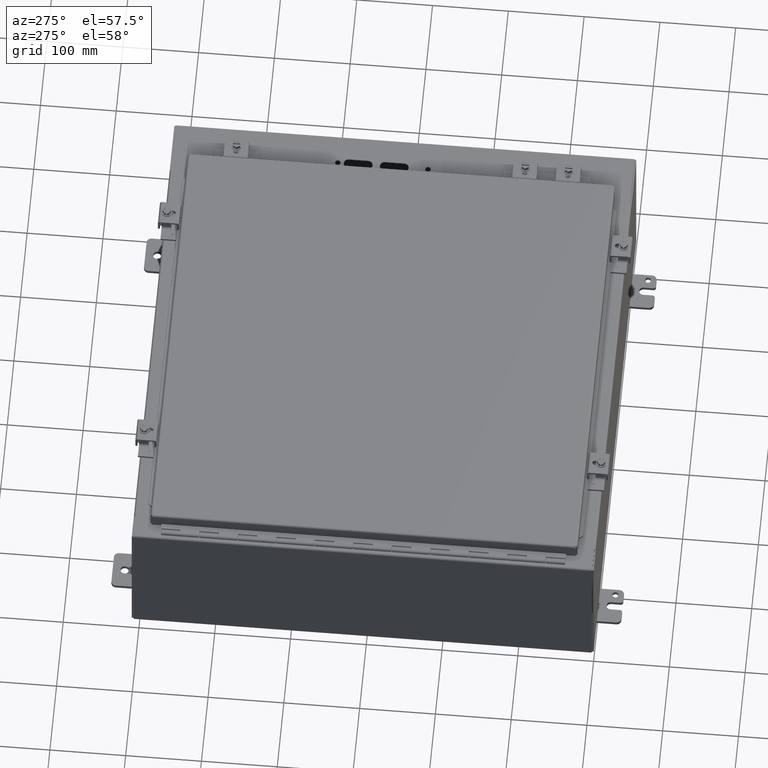
[diagram: clean part render]
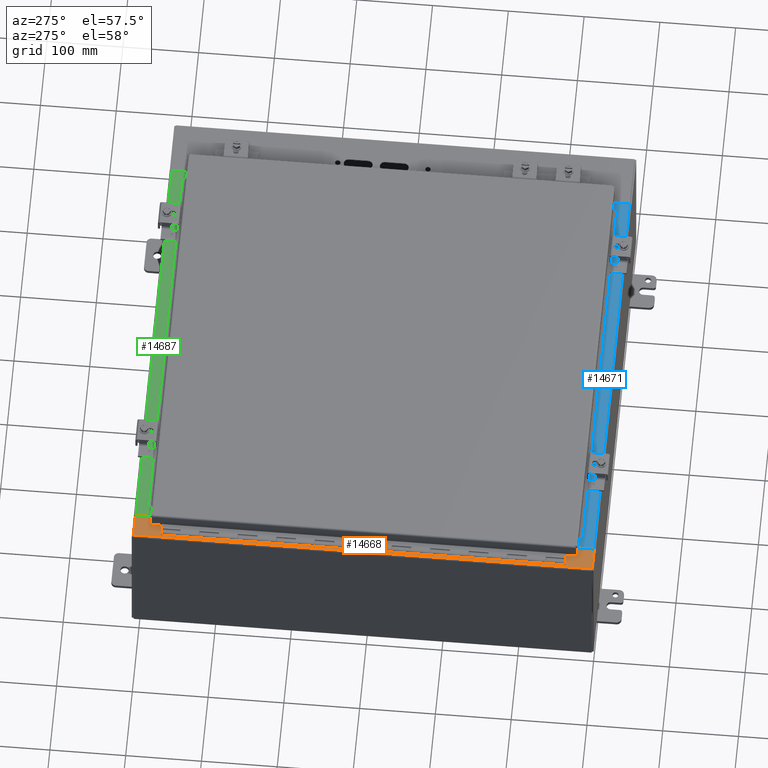
[diagram: same view with three faces highlighted in distinct colors, each labeled with its STEP entity id]
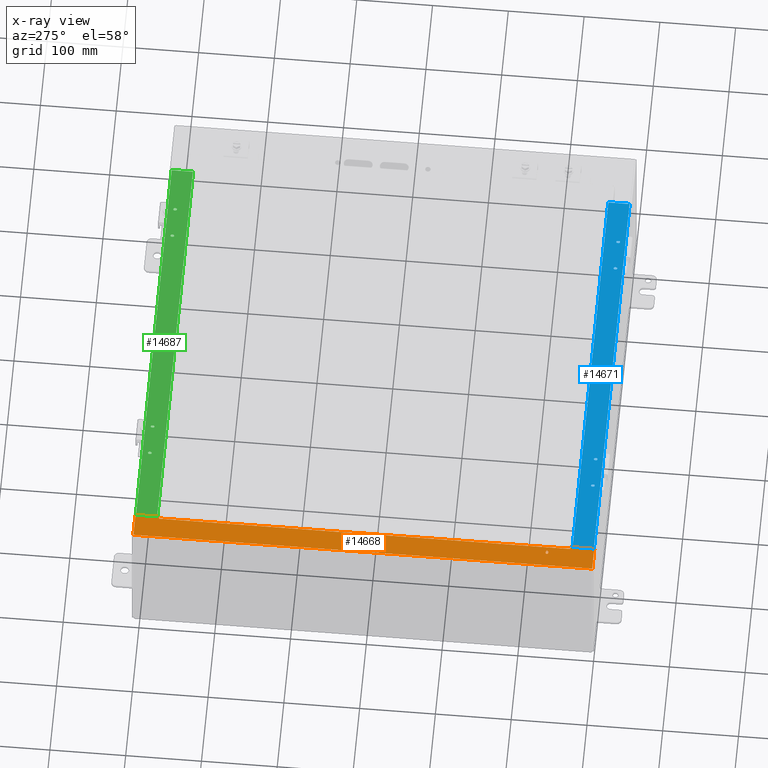
[diagram: x-ray of the same camera — body ghosted, the three highlighted faces saturated]
A machine part, auxiliary view with three faces highlighted in distinct colors.
The next image is the same camera in x-ray (body ghosted, the three faces saturated) — at least one of them is partly hidden behind the body in this view.
Their STEP definitions:

[orange] entity #14668 — the highlighted planar face has unit normal (0, -0, 1).
#404=FACE_BOUND('',#2070,.T.);
#637=PLANE('',#15662);
#1212=FACE_OUTER_BOUND('',#2069,.T.);
#2069=EDGE_LOOP('',(#10407,#10408,#10409,#10410,#10411,#10412,#10413,#10414,
#10415,#10416,#10417,#10418));
#2070=EDGE_LOOP('',(#10419,#10420,#10421,#10422));
#2897=LINE('',#21251,#4286);
#2901=LINE('',#21263,#4290);
#3051=LINE('',#21809,#4440);
#3062=LINE('',#21839,#4451);
#3102=LINE('',#21922,#4491);
#3104=LINE('',#21928,#4493);
#3108=LINE('',#21935,#4497);
#3110=LINE('',#21939,#4499);
#3113=LINE('',#21945,#4502);
#3116=LINE('',#21951,#4505);
#3117=LINE('',#21953,#4506);
#3118=LINE('',#21955,#4507);
#3119=LINE('',#21957,#4508);
#3120=LINE('',#21958,#4509);
#4286=VECTOR('',#17068,0.0629999999999999);
#4290=VECTOR('',#17080,0.0630000000000001);
#4440=VECTOR('',#17626,0.000199999999999981);
#4451=VECTOR('',#17651,0.000199999999999981);
#4491=VECTOR('',#17741,21.374);
#4493=VECTOR('',#17747,0.105450000000007);
#4497=VECTOR('',#17753,0.000199999999999981);
#4499=VECTOR('',#17757,0.00020000000000138);
#4502=VECTOR('',#17762,0.105450000000007);
#4505=VECTOR('',#17767,1.2338);
#4506=VECTOR('',#17768,1.20725000000001);
#4507=VECTOR('',#17769,23.842);
#4508=VECTOR('',#17770,1.20725000000001);
#4509=VECTOR('',#17771,1.2338);
#5618=CIRCLE('',#15425,0.0625);
#5620=CIRCLE('',#15429,0.0625);
#6237=VERTEX_POINT('',#21248);
#6238=VERTEX_POINT('',#21250);
#6240=VERTEX_POINT('',#21256);
#6242=VERTEX_POINT('',#21262);
#6439=VERTEX_POINT('',#21806);
#6440=VERTEX_POINT('',#21808);
#6451=VERTEX_POINT('',#21836);
#6452=VERTEX_POINT('',#21838);
#6471=VERTEX_POINT('',#21926);
#6472=VERTEX_POINT('',#21927);
#6475=VERTEX_POINT('',#21938);
#6477=VERTEX_POINT('',#21944);
#6479=VERTEX_POINT('',#21950);
#6480=VERTEX_POINT('',#21952);
#6481=VERTEX_POINT('',#21954);
#6482=VERTEX_POINT('',#21956);
#7665=EDGE_CURVE('',#6238,#6237,#2897,.T.);
#7668=EDGE_CURVE('',#6240,#6238,#5618,.T.);
#7671=EDGE_CURVE('',#6242,#6240,#2901,.T.);
#7674=EDGE_CURVE('',#6237,#6242,#5620,.T.);
#7917=EDGE_CURVE('',#6440,#6439,#3051,.T.);
#7932=EDGE_CURVE('',#6452,#6451,#3062,.T.);
#7974=EDGE_CURVE('',#6439,#6452,#3102,.T.);
#7976=EDGE_CURVE('',#6471,#6472,#3104,.T.);
#7980=EDGE_CURVE('',#6472,#6440,#3108,.T.);
#7982=EDGE_CURVE('',#6451,#6475,#3110,.T.);
#7985=EDGE_CURVE('',#6475,#6477,#3113,.T.);
#7988=EDGE_CURVE('',#6479,#6477,#3116,.T.);
#7989=EDGE_CURVE('',#6479,#6480,#3117,.T.);
#7990=EDGE_CURVE('',#6481,#6480,#3118,.T.);
#7991=EDGE_CURVE('',#6481,#6482,#3119,.T.);
#7992=EDGE_CURVE('',#6471,#6482,#3120,.T.);
#10407=ORIENTED_EDGE('',*,*,#7976,.T.);
#10408=ORIENTED_EDGE('',*,*,#7980,.T.);
#10409=ORIENTED_EDGE('',*,*,#7917,.T.);
#10410=ORIENTED_EDGE('',*,*,#7974,.T.);
#10411=ORIENTED_EDGE('',*,*,#7932,.T.);
#10412=ORIENTED_EDGE('',*,*,#7982,.T.);
#10413=ORIENTED_EDGE('',*,*,#7985,.T.);
#10414=ORIENTED_EDGE('',*,*,#7988,.F.);
#10415=ORIENTED_EDGE('',*,*,#7989,.T.);
#10416=ORIENTED_EDGE('',*,*,#7990,.F.);
#10417=ORIENTED_EDGE('',*,*,#7991,.T.);
#10418=ORIENTED_EDGE('',*,*,#7992,.F.);
#10419=ORIENTED_EDGE('',*,*,#7665,.T.);
#10420=ORIENTED_EDGE('',*,*,#7674,.T.);
#10421=ORIENTED_EDGE('',*,*,#7671,.T.);
#10422=ORIENTED_EDGE('',*,*,#7668,.T.);
#14668=ADVANCED_FACE('',(#1212,#404),#637,.T.);
#15425=AXIS2_PLACEMENT_3D('',#21257,#17074,#17075);
#15429=AXIS2_PLACEMENT_3D('',#21267,#17086,#17087);
#15662=AXIS2_PLACEMENT_3D('',#21949,#17765,#17766);
#17068=DIRECTION('',(-1.,-3.02470474793707E-15,-1.0646774268193E-30));
#17074=DIRECTION('center_axis',(0.,3.51993835942313E-16,-1.));
#17075=DIRECTION('ref_axis',(3.01360390529615E-15,-1.,0.));
#17080=DIRECTION('',(1.,3.02470474793707E-15,1.0646774268193E-30));
#17086=DIRECTION('center_axis',(0.,3.51993835942313E-16,-1.));
#17087=DIRECTION('ref_axis',(-3.01360390529615E-15,1.,0.));
#17626=DIRECTION('',(1.,0.,0.));
#17651=DIRECTION('',(-1.,0.,0.));
#17741=DIRECTION('',(-3.10838136080822E-16,1.,3.51993835942312E-16));
#17747=DIRECTION('',(-1.,0.,0.));
#17753=DIRECTION('',(0.,1.,3.51993835942312E-16));
#17757=DIRECTION('',(0.,1.,3.51993835942312E-16));
#17762=DIRECTION('',(1.,0.,0.));
#17765=DIRECTION('center_axis',(0.,-3.51993835942313E-16,1.));
#17766=DIRECTION('ref_axis',(1.,0.,0.));
#17767=DIRECTION('',(3.06161305220657E-16,-1.,-3.51993835942312E-16));
#17768=DIRECTION('',(-1.,0.,0.));
#17769=DIRECTION('',(3.51993835942313E-16,1.,3.06161699786838E-16));
#17770=DIRECTION('',(1.,0.,0.));
#17771=DIRECTION('',(3.06161305220657E-16,-1.,-3.51993835942312E-16));
#21248=CARTESIAN_POINT('',(0.868499999999997,2.4375,8.));
#21250=CARTESIAN_POINT('',(0.931499999999997,2.4375,8.));
#21251=CARTESIAN_POINT('',(0.471250000000026,2.4375,8.));
#21256=CARTESIAN_POINT('',(0.931499999999997,2.5625,8.));
#21257=CARTESIAN_POINT('Origin',(0.931499999999997,2.5,8.00000000000001));
#21262=CARTESIAN_POINT('',(0.868499999999997,2.5625,8.));
#21263=CARTESIAN_POINT('',(0.502750000000026,2.5625,8.));
#21267=CARTESIAN_POINT('Origin',(0.868499999999997,2.5,8.00000000000001));
#21806=CARTESIAN_POINT('',(1.20724999999999,1.313,8.));
#21808=CARTESIAN_POINT('',(1.20704999999999,1.313,8.));
#21809=CARTESIAN_POINT('',(0.64052499999999,1.31300000000001,8.));
#21836=CARTESIAN_POINT('',(1.20704999999998,22.687,8.00000000000001));
#21838=CARTESIAN_POINT('',(1.20724999999998,22.687,8.00000000000001));
#21839=CARTESIAN_POINT('',(0.69324999999999,22.687,8.00000000000001));
#21922=CARTESIAN_POINT('',(1.20724999999998,23.304,8.00000000000001));
#21926=CARTESIAN_POINT('',(1.3125,1.3128,8.));
#21927=CARTESIAN_POINT('',(1.20704999999999,1.3128,8.));
#21928=CARTESIAN_POINT('',(0.693249999999994,1.31280000000001,8.));
#21935=CARTESIAN_POINT('',(1.20704999999999,12.6169,8.));
#21938=CARTESIAN_POINT('',(1.20704999999998,22.6872,8.00000000000001));
#21939=CARTESIAN_POINT('',(1.20704999999998,23.304,8.00000000000001));
#21944=CARTESIAN_POINT('',(1.31249999999999,22.6872,8.00000000000001));
#21945=CARTESIAN_POINT('',(0.640524999999987,22.6872,8.00000000000001));
#21949=CARTESIAN_POINT('Origin',(0.0739999999999904,23.921,8.00000000000001));
#21950=CARTESIAN_POINT('',(1.31249999999999,23.921,8.00000000000001));
#21951=CARTESIAN_POINT('',(1.31249999999999,23.921,8.00000000000001));
#21952=CARTESIAN_POINT('',(0.105249999999973,23.921,8.00000000000001));
#21953=CARTESIAN_POINT('',(1.31249999999999,23.921,8.00000000000001));
#21954=CARTESIAN_POINT('',(0.105249999999965,0.0790000000000108,8.00000000000001));
#21955=CARTESIAN_POINT('',(0.105249999999973,23.921,8.00000000000001));
#21956=CARTESIAN_POINT('',(1.3125,0.0790000000000053,8.));
#21957=CARTESIAN_POINT('',(1.3125,0.0789999999999997,8.));
#21958=CARTESIAN_POINT('',(1.31249999999999,23.921,8.00000000000001));

[blue] entity #14671 — the highlighted planar face has unit normal (0, 0, 1).
#405=FACE_BOUND('',#2074,.T.);
#406=FACE_BOUND('',#2075,.T.);
#407=FACE_BOUND('',#2076,.T.);
#408=FACE_BOUND('',#2077,.T.);
#640=PLANE('',#15665);
#1215=FACE_OUTER_BOUND('',#2073,.T.);
#2073=EDGE_LOOP('',(#10439,#10440,#10441,#10442));
#2074=EDGE_LOOP('',(#10443,#10444,#10445,#10446));
#2075=EDGE_LOOP('',(#10447,#10448,#10449,#10450));
#2076=EDGE_LOOP('',(#10451,#10452,#10453,#10454));
#2077=EDGE_LOOP('',(#10455,#10456,#10457,#10458));
#2866=LINE('',#21157,#4255);
#2870=LINE('',#21167,#4259);
#2874=LINE('',#21182,#4263);
#2878=LINE('',#21192,#4267);
#2882=LINE('',#21207,#4271);
#2886=LINE('',#21217,#4275);
#2890=LINE('',#21232,#4279);
#2894=LINE('',#21242,#4283);
#2927=LINE('',#21498,#4316);
#2939=LINE('',#21531,#4328);
#3068=LINE('',#21854,#4457);
#3127=LINE('',#21972,#4516);
#4255=VECTOR('',#16971,0.0629999999999999);
#4259=VECTOR('',#16983,0.0629999999999999);
#4263=VECTOR('',#16997,0.0629999999999999);
#4267=VECTOR('',#17009,0.0629999999999999);
#4271=VECTOR('',#17023,0.0629999999999999);
#4275=VECTOR('',#17035,0.0629999999999999);
#4279=VECTOR('',#17049,0.0629999999999999);
#4283=VECTOR('',#17061,0.0629999999999999);
#4316=VECTOR('',#17360,1.102);
#4328=VECTOR('',#17386,1.10199999999983);
#4457=VECTOR('',#17671,21.253);
#4516=VECTOR('',#17784,21.253);
#5602=CIRCLE('',#15388,0.0625);
#5604=CIRCLE('',#15392,0.0625);
#5606=CIRCLE('',#15397,0.0625);
#5608=CIRCLE('',#15401,0.0625);
#5610=CIRCLE('',#15406,0.0625);
#5612=CIRCLE('',#15410,0.0625);
#5614=CIRCLE('',#15415,0.0625);
#5616=CIRCLE('',#15419,0.0625);
#6205=VERTEX_POINT('',#21148);
#6206=VERTEX_POINT('',#21150);
#6208=VERTEX_POINT('',#21156);
#6210=VERTEX_POINT('',#21162);
#6213=VERTEX_POINT('',#21173);
#6214=VERTEX_POINT('',#21175);
#6216=VERTEX_POINT('',#21181);
#6218=VERTEX_POINT('',#21187);
#6221=VERTEX_POINT('',#21198);
#6222=VERTEX_POINT('',#21200);
#6224=VERTEX_POINT('',#21206);
#6226=VERTEX_POINT('',#21212);
#6229=VERTEX_POINT('',#21223);
#6230=VERTEX_POINT('',#21225);
#6232=VERTEX_POINT('',#21231);
#6234=VERTEX_POINT('',#21237);
#6323=VERTEX_POINT('',#21495);
#6324=VERTEX_POINT('',#21497);
#6337=VERTEX_POINT('',#21528);
#6338=VERTEX_POINT('',#21530);
#7617=EDGE_CURVE('',#6206,#6205,#5602,.T.);
#7620=EDGE_CURVE('',#6208,#6206,#2866,.T.);
#7623=EDGE_CURVE('',#6210,#6208,#5604,.T.);
#7626=EDGE_CURVE('',#6205,#6210,#2870,.T.);
#7629=EDGE_CURVE('',#6214,#6213,#5606,.T.);
#7632=EDGE_CURVE('',#6216,#6214,#2874,.T.);
#7635=EDGE_CURVE('',#6218,#6216,#5608,.T.);
#7638=EDGE_CURVE('',#6213,#6218,#2878,.T.);
#7641=EDGE_CURVE('',#6222,#6221,#5610,.T.);
#7644=EDGE_CURVE('',#6224,#6222,#2882,.T.);
#7647=EDGE_CURVE('',#6226,#6224,#5612,.T.);
#7650=EDGE_CURVE('',#6221,#6226,#2886,.T.);
#7653=EDGE_CURVE('',#6230,#6229,#5614,.T.);
#7656=EDGE_CURVE('',#6232,#6230,#2890,.T.);
#7659=EDGE_CURVE('',#6234,#6232,#5616,.T.);
#7662=EDGE_CURVE('',#6229,#6234,#2894,.T.);
#7763=EDGE_CURVE('',#6324,#6323,#2927,.T.);
#7779=EDGE_CURVE('',#6338,#6337,#2939,.T.);
#7940=EDGE_CURVE('',#6337,#6324,#3068,.T.);
#7999=EDGE_CURVE('',#6338,#6323,#3127,.T.);
#10439=ORIENTED_EDGE('',*,*,#7940,.T.);
#10440=ORIENTED_EDGE('',*,*,#7763,.T.);
#10441=ORIENTED_EDGE('',*,*,#7999,.F.);
#10442=ORIENTED_EDGE('',*,*,#7779,.T.);
#10443=ORIENTED_EDGE('',*,*,#7617,.T.);
#10444=ORIENTED_EDGE('',*,*,#7626,.T.);
#10445=ORIENTED_EDGE('',*,*,#7623,.T.);
#10446=ORIENTED_EDGE('',*,*,#7620,.T.);
#10447=ORIENTED_EDGE('',*,*,#7629,.T.);
#10448=ORIENTED_EDGE('',*,*,#7638,.T.);
#10449=ORIENTED_EDGE('',*,*,#7635,.T.);
#10450=ORIENTED_EDGE('',*,*,#7632,.T.);
#10451=ORIENTED_EDGE('',*,*,#7641,.T.);
#10452=ORIENTED_EDGE('',*,*,#7650,.T.);
#10453=ORIENTED_EDGE('',*,*,#7647,.T.);
#10454=ORIENTED_EDGE('',*,*,#7644,.T.);
#10455=ORIENTED_EDGE('',*,*,#7653,.T.);
#10456=ORIENTED_EDGE('',*,*,#7662,.T.);
#10457=ORIENTED_EDGE('',*,*,#7659,.T.);
#10458=ORIENTED_EDGE('',*,*,#7656,.T.);
#14671=ADVANCED_FACE('',(#1215,#405,#406,#407,#408),#640,.T.);
#15388=AXIS2_PLACEMENT_3D('',#21151,#16965,#16966);
#15392=AXIS2_PLACEMENT_3D('',#21163,#16977,#16978);
#15397=AXIS2_PLACEMENT_3D('',#21176,#16991,#16992);
#15401=AXIS2_PLACEMENT_3D('',#21188,#17003,#17004);
#15406=AXIS2_PLACEMENT_3D('',#21201,#17017,#17018);
#15410=AXIS2_PLACEMENT_3D('',#21213,#17029,#17030);
#15415=AXIS2_PLACEMENT_3D('',#21226,#17043,#17044);
#15419=AXIS2_PLACEMENT_3D('',#21238,#17055,#17056);
#15665=AXIS2_PLACEMENT_3D('',#21971,#17782,#17783);
#16965=DIRECTION('center_axis',(0.,0.,-1.));
#16966=DIRECTION('ref_axis',(1.,7.99213758992375E-15,0.));
#16971=DIRECTION('',(-7.99213758992374E-15,1.,0.));
#16977=DIRECTION('center_axis',(0.,0.,-1.));
#16978=DIRECTION('ref_axis',(-1.,-7.99213758992375E-15,0.));
#16983=DIRECTION('',(7.99213758992374E-15,-1.,0.));
#16991=DIRECTION('center_axis',(0.,0.,-1.));
#16992=DIRECTION('ref_axis',(1.,7.99213758992375E-15,0.));
#16997=DIRECTION('',(-7.99213758992374E-15,1.,0.));
#17003=DIRECTION('center_axis',(0.,0.,-1.));
#17004=DIRECTION('ref_axis',(-1.,-7.99213758992375E-15,0.));
#17009=DIRECTION('',(7.99213758992374E-15,-1.,0.));
#17017=DIRECTION('center_axis',(0.,0.,-1.));
#17018=DIRECTION('ref_axis',(1.,7.99213758992375E-15,0.));
#17023=DIRECTION('',(-7.99213758992374E-15,1.,0.));
#17029=DIRECTION('center_axis',(0.,0.,-1.));
#17030=DIRECTION('ref_axis',(-1.,-7.99213758992375E-15,0.));
#17035=DIRECTION('',(7.99213758992374E-15,-1.,0.));
#17043=DIRECTION('center_axis',(0.,0.,-1.));
#17044=DIRECTION('ref_axis',(1.,7.99213758992375E-15,0.));
#17049=DIRECTION('',(-7.99213758992374E-15,1.,0.));
#17055=DIRECTION('center_axis',(0.,0.,-1.));
#17056=DIRECTION('ref_axis',(-1.,-7.99213758992375E-15,0.));
#17061=DIRECTION('',(7.99213758992374E-15,-1.,0.));
#17360=DIRECTION('',(0.,-1.,0.));
#17386=DIRECTION('',(0.,1.,0.));
#17671=DIRECTION('',(-1.,0.,0.));
#17782=DIRECTION('center_axis',(0.,0.,1.));
#17783=DIRECTION('ref_axis',(1.,0.,0.));
#17784=DIRECTION('',(-1.,-8.21328223313601E-15,-8.21328223313579E-15));
#21148=CARTESIAN_POINT('',(18.6300000000001,0.52050000000011,8.));
#21150=CARTESIAN_POINT('',(18.5050000000001,0.520500000000109,8.));
#21151=CARTESIAN_POINT('Origin',(18.5675000000001,0.52050000000011,8.));
#21156=CARTESIAN_POINT('',(18.5050000000001,0.457500000000109,8.));
#21157=CARTESIAN_POINT('',(18.5050000000001,0.297250000000122,8.));
#21162=CARTESIAN_POINT('',(18.6300000000001,0.45750000000011,8.));
#21163=CARTESIAN_POINT('Origin',(18.5675000000001,0.45750000000011,8.));
#21167=CARTESIAN_POINT('',(18.6300000000001,0.265750000000123,8.));
#21173=CARTESIAN_POINT('',(20.2550000000001,0.520500000000124,8.));
#21175=CARTESIAN_POINT('',(20.1300000000001,0.520500000000123,8.));
#21176=CARTESIAN_POINT('Origin',(20.1925000000001,0.520500000000124,8.));
#21181=CARTESIAN_POINT('',(20.1300000000001,0.457500000000123,8.));
#21182=CARTESIAN_POINT('',(20.1300000000001,0.297250000000136,8.));
#21187=CARTESIAN_POINT('',(20.2550000000001,0.457500000000124,8.));
#21188=CARTESIAN_POINT('Origin',(20.1925000000001,0.457500000000124,8.));
#21192=CARTESIAN_POINT('',(20.2550000000001,0.265750000000137,8.));
#21198=CARTESIAN_POINT('',(6.875,0.520500000000014,8.));
#21200=CARTESIAN_POINT('',(6.75,0.520500000000013,8.));
#21201=CARTESIAN_POINT('Origin',(6.8125,0.520500000000013,8.));
#21206=CARTESIAN_POINT('',(6.75,0.457500000000013,8.));
#21207=CARTESIAN_POINT('',(6.75,0.297250000000027,8.));
#21212=CARTESIAN_POINT('',(6.875,0.457500000000014,8.));
#21213=CARTESIAN_POINT('Origin',(6.8125,0.457500000000013,8.));
#21217=CARTESIAN_POINT('',(6.875,0.265750000000028,8.));
#21223=CARTESIAN_POINT('',(5.25,0.520500000000001,8.));
#21225=CARTESIAN_POINT('',(5.125,0.5205,8.));
#21226=CARTESIAN_POINT('Origin',(5.1875,0.5205,8.));
#21231=CARTESIAN_POINT('',(5.125,0.4575,8.));
#21232=CARTESIAN_POINT('',(5.125,0.297250000000014,8.));
#21237=CARTESIAN_POINT('',(5.25,0.457500000000001,8.));
#21238=CARTESIAN_POINT('Origin',(5.1875,0.4575,8.));
#21242=CARTESIAN_POINT('',(5.25,0.265750000000015,8.));
#21495=CARTESIAN_POINT('',(1.3135,0.105249999999998,8.));
#21497=CARTESIAN_POINT('',(1.3135,1.20725,8.));
#21498=CARTESIAN_POINT('',(1.3135,1.3125,8.));
#21528=CARTESIAN_POINT('',(22.5665,1.20725,8.));
#21530=CARTESIAN_POINT('',(22.5665,0.105250000000172,8.));
#21531=CARTESIAN_POINT('',(22.5665,1.3125,8.));
#21854=CARTESIAN_POINT('',(1.3135,1.20725,8.));
#21971=CARTESIAN_POINT('Origin',(1.3135,0.0739999999999978,8.));
#21972=CARTESIAN_POINT('',(1.3135,0.10525,8.));

[green] entity #14687 — the highlighted planar face has unit normal (-0, -0, 1).
#409=FACE_BOUND('',#2094,.T.);
#410=FACE_BOUND('',#2095,.T.);
#411=FACE_BOUND('',#2096,.T.);
#412=FACE_BOUND('',#2097,.T.);
#652=PLANE('',#15689);
#1231=FACE_OUTER_BOUND('',#2093,.T.);
#2093=EDGE_LOOP('',(#10539,#10540,#10541,#10542));
#2094=EDGE_LOOP('',(#10543,#10544,#10545,#10546));
#2095=EDGE_LOOP('',(#10547,#10548,#10549,#10550));
#2096=EDGE_LOOP('',(#10551,#10552,#10553,#10554));
#2097=EDGE_LOOP('',(#10555,#10556,#10557,#10558));
#2834=LINE('',#21057,#4223);
#2838=LINE('',#21067,#4227);
#2842=LINE('',#21082,#4231);
#2846=LINE('',#21092,#4235);
#2850=LINE('',#21107,#4239);
#2854=LINE('',#21117,#4243);
#2858=LINE('',#21132,#4247);
#2862=LINE('',#21142,#4251);
#3003=LINE('',#21688,#4392);
#3017=LINE('',#21733,#4406);
#3098=LINE('',#21914,#4487);
#3161=LINE('',#22056,#4550);
#4223=VECTOR('',#16867,0.0630000000000012);
#4227=VECTOR('',#16879,0.0630000000000012);
#4231=VECTOR('',#16893,0.0630000000000012);
#4235=VECTOR('',#16905,0.0630000000000012);
#4239=VECTOR('',#16919,0.0630000000000012);
#4243=VECTOR('',#16931,0.0630000000000012);
#4247=VECTOR('',#16945,0.0630000000000012);
#4251=VECTOR('',#16957,0.0630000000000012);
#4392=VECTOR('',#17524,1.10200000000002);
#4406=VECTOR('',#17556,1.10200000000001);
#4487=VECTOR('',#17729,21.253);
#4550=VECTOR('',#17866,21.253);
#5586=CIRCLE('',#15352,0.0625);
#5588=CIRCLE('',#15356,0.0625);
#5590=CIRCLE('',#15361,0.0625);
#5592=CIRCLE('',#15365,0.0625);
#5594=CIRCLE('',#15370,0.0625);
#5596=CIRCLE('',#15374,0.0625);
#5598=CIRCLE('',#15379,0.0625);
#5600=CIRCLE('',#15383,0.0625);
#6173=VERTEX_POINT('',#21048);
#6174=VERTEX_POINT('',#21050);
#6176=VERTEX_POINT('',#21056);
#6178=VERTEX_POINT('',#21062);
#6181=VERTEX_POINT('',#21073);
#6182=VERTEX_POINT('',#21075);
#6184=VERTEX_POINT('',#21081);
#6186=VERTEX_POINT('',#21087);
#6189=VERTEX_POINT('',#21098);
#6190=VERTEX_POINT('',#21100);
#6192=VERTEX_POINT('',#21106);
#6194=VERTEX_POINT('',#21112);
#6197=VERTEX_POINT('',#21123);
#6198=VERTEX_POINT('',#21125);
#6200=VERTEX_POINT('',#21131);
#6202=VERTEX_POINT('',#21137);
#6393=VERTEX_POINT('',#21685);
#6394=VERTEX_POINT('',#21687);
#6415=VERTEX_POINT('',#21730);
#6416=VERTEX_POINT('',#21732);
#7569=EDGE_CURVE('',#6174,#6173,#5586,.T.);
#7572=EDGE_CURVE('',#6176,#6174,#2834,.T.);
#7575=EDGE_CURVE('',#6178,#6176,#5588,.T.);
#7578=EDGE_CURVE('',#6173,#6178,#2838,.T.);
#7581=EDGE_CURVE('',#6182,#6181,#5590,.T.);
#7584=EDGE_CURVE('',#6184,#6182,#2842,.T.);
#7587=EDGE_CURVE('',#6186,#6184,#5592,.T.);
#7590=EDGE_CURVE('',#6181,#6186,#2846,.T.);
#7593=EDGE_CURVE('',#6190,#6189,#5594,.T.);
#7596=EDGE_CURVE('',#6192,#6190,#2850,.T.);
#7599=EDGE_CURVE('',#6194,#6192,#5596,.T.);
#7602=EDGE_CURVE('',#6189,#6194,#2854,.T.);
#7605=EDGE_CURVE('',#6198,#6197,#5598,.T.);
#7608=EDGE_CURVE('',#6200,#6198,#2858,.T.);
#7611=EDGE_CURVE('',#6202,#6200,#5600,.T.);
#7614=EDGE_CURVE('',#6197,#6202,#2862,.T.);
#7857=EDGE_CURVE('',#6394,#6393,#3003,.T.);
#7879=EDGE_CURVE('',#6416,#6415,#3017,.T.);
#7970=EDGE_CURVE('',#6393,#6416,#3098,.T.);
#8041=EDGE_CURVE('',#6394,#6415,#3161,.T.);
#10539=ORIENTED_EDGE('',*,*,#7970,.T.);
#10540=ORIENTED_EDGE('',*,*,#7879,.T.);
#10541=ORIENTED_EDGE('',*,*,#8041,.F.);
#10542=ORIENTED_EDGE('',*,*,#7857,.T.);
#10543=ORIENTED_EDGE('',*,*,#7569,.T.);
#10544=ORIENTED_EDGE('',*,*,#7578,.T.);
#10545=ORIENTED_EDGE('',*,*,#7575,.T.);
#10546=ORIENTED_EDGE('',*,*,#7572,.T.);
#10547=ORIENTED_EDGE('',*,*,#7581,.T.);
#10548=ORIENTED_EDGE('',*,*,#7590,.T.);
#10549=ORIENTED_EDGE('',*,*,#7587,.T.);
#10550=ORIENTED_EDGE('',*,*,#7584,.T.);
#10551=ORIENTED_EDGE('',*,*,#7593,.T.);
#10552=ORIENTED_EDGE('',*,*,#7602,.T.);
#10553=ORIENTED_EDGE('',*,*,#7599,.T.);
#10554=ORIENTED_EDGE('',*,*,#7596,.T.);
#10555=ORIENTED_EDGE('',*,*,#7605,.T.);
#10556=ORIENTED_EDGE('',*,*,#7614,.T.);
#10557=ORIENTED_EDGE('',*,*,#7611,.T.);
#10558=ORIENTED_EDGE('',*,*,#7608,.T.);
#14687=ADVANCED_FACE('',(#1231,#409,#410,#411,#412),#652,.T.);
#15352=AXIS2_PLACEMENT_3D('',#21051,#16861,#16862);
#15356=AXIS2_PLACEMENT_3D('',#21063,#16873,#16874);
#15361=AXIS2_PLACEMENT_3D('',#21076,#16887,#16888);
#15365=AXIS2_PLACEMENT_3D('',#21088,#16899,#16900);
#15370=AXIS2_PLACEMENT_3D('',#21101,#16913,#16914);
#15374=AXIS2_PLACEMENT_3D('',#21113,#16925,#16926);
#15379=AXIS2_PLACEMENT_3D('',#21126,#16939,#16940);
#15383=AXIS2_PLACEMENT_3D('',#21138,#16951,#16952);
#15689=AXIS2_PLACEMENT_3D('',#22055,#17864,#17865);
#16861=DIRECTION('center_axis',(2.63248703290063E-16,5.08209751909766E-14,
-1.));
#16862=DIRECTION('ref_axis',(1.,7.99213758992375E-15,0.));
#16867=DIRECTION('',(-7.99213758992374E-15,1.,5.08209751909766E-14));
#16873=DIRECTION('center_axis',(2.63248703290063E-16,5.08209751909766E-14,
-1.));
#16874=DIRECTION('ref_axis',(-1.,-7.99213758992375E-15,0.));
#16879=DIRECTION('',(7.99213758992374E-15,-1.,-5.08209751909766E-14));
#16887=DIRECTION('center_axis',(2.63248703290063E-16,5.08209751909766E-14,
-1.));
#16888=DIRECTION('ref_axis',(1.,7.99213758992375E-15,0.));
#16893=DIRECTION('',(-7.99213758992374E-15,1.,5.08209751909766E-14));
#16899=DIRECTION('center_axis',(2.63248703290063E-16,5.08209751909766E-14,
-1.));
#16900=DIRECTION('ref_axis',(-1.,-7.99213758992375E-15,0.));
#16905=DIRECTION('',(7.99213758992374E-15,-1.,-5.08209751909766E-14));
#16913=DIRECTION('center_axis',(2.63248703290063E-16,5.08209751909766E-14,
-1.));
#16914=DIRECTION('ref_axis',(1.,7.99213758992375E-15,0.));
#16919=DIRECTION('',(-7.99213758992374E-15,1.,5.08209751909766E-14));
#16925=DIRECTION('center_axis',(2.63248703290063E-16,5.08209751909766E-14,
-1.));
#16926=DIRECTION('ref_axis',(-1.,-7.99213758992375E-15,0.));
#16931=DIRECTION('',(7.99213758992374E-15,-1.,-5.08209751909766E-14));
#16939=DIRECTION('center_axis',(2.63248703290063E-16,5.08209751909766E-14,
-1.));
#16940=DIRECTION('ref_axis',(1.,7.99213758992375E-15,0.));
#16945=DIRECTION('',(-7.99213758992374E-15,1.,5.08209751909766E-14));
#16951=DIRECTION('center_axis',(2.63248703290063E-16,5.08209751909766E-14,
-1.));
#16952=DIRECTION('ref_axis',(-1.,-7.99213758992375E-15,0.));
#16957=DIRECTION('',(7.99213758992374E-15,-1.,-5.08209751909766E-14));
#17524=DIRECTION('',(0.,-1.,-5.08209751909766E-14));
#17556=DIRECTION('',(0.,1.,5.08209751909766E-14));
#17729=DIRECTION('',(1.,5.26497406580192E-16,2.63248703290089E-16));
#17864=DIRECTION('center_axis',(-2.63248703290063E-16,-5.08209751909766E-14,
1.));
#17865=DIRECTION('ref_axis',(1.,0.,0.));
#17866=DIRECTION('',(1.,-1.97436527467558E-16,5.26497406580197E-16));
#21048=CARTESIAN_POINT('',(20.2550000000001,23.5424999999999,8.));
#21050=CARTESIAN_POINT('',(20.1300000000001,23.5424999999999,8.));
#21051=CARTESIAN_POINT('Origin',(20.1925000000001,23.5424999999999,8.00000000000001));
#21056=CARTESIAN_POINT('',(20.1300000000001,23.4794999999999,8.));
#21057=CARTESIAN_POINT('',(20.1300000000001,23.7342499999997,8.));
#21062=CARTESIAN_POINT('',(20.2550000000001,23.4794999999999,8.));
#21063=CARTESIAN_POINT('Origin',(20.1925000000001,23.4794999999999,8.00000000000001));
#21067=CARTESIAN_POINT('',(20.2550000000001,23.7027499999997,8.));
#21073=CARTESIAN_POINT('',(18.6300000000001,23.5424999999999,8.));
#21075=CARTESIAN_POINT('',(18.5050000000001,23.5424999999999,8.));
#21076=CARTESIAN_POINT('Origin',(18.5675000000001,23.5424999999999,8.00000000000001));
#21081=CARTESIAN_POINT('',(18.5050000000001,23.4794999999999,8.));
#21082=CARTESIAN_POINT('',(18.5050000000001,23.7342499999997,8.));
#21087=CARTESIAN_POINT('',(18.6300000000001,23.4794999999999,8.));
#21088=CARTESIAN_POINT('Origin',(18.5675000000001,23.4794999999999,8.00000000000001));
#21092=CARTESIAN_POINT('',(18.6300000000001,23.7027499999997,8.));
#21098=CARTESIAN_POINT('',(6.875,23.5425,8.));
#21100=CARTESIAN_POINT('',(6.75,23.5425,8.));
#21101=CARTESIAN_POINT('Origin',(6.8125,23.5425,8.00000000000001));
#21106=CARTESIAN_POINT('',(6.75,23.4795,8.));
#21107=CARTESIAN_POINT('',(6.75,23.7342499999997,8.));
#21112=CARTESIAN_POINT('',(6.875,23.4795,8.));
#21113=CARTESIAN_POINT('Origin',(6.8125,23.4795,8.00000000000001));
#21117=CARTESIAN_POINT('',(6.875,23.7027499999997,7.99999999999999));
#21123=CARTESIAN_POINT('',(5.25,23.5425,8.));
#21125=CARTESIAN_POINT('',(5.125,23.5425,8.));
#21126=CARTESIAN_POINT('Origin',(5.1875,23.5425,8.00000000000001));
#21131=CARTESIAN_POINT('',(5.125,23.4795,8.));
#21132=CARTESIAN_POINT('',(5.125,23.7342499999997,8.));
#21137=CARTESIAN_POINT('',(5.25,23.4795,8.));
#21138=CARTESIAN_POINT('Origin',(5.1875,23.4795,8.00000000000001));
#21142=CARTESIAN_POINT('',(5.25,23.7027499999997,7.99999999999999));
#21685=CARTESIAN_POINT('',(1.31349999999999,22.7927499999996,7.99999999999994));
#21687=CARTESIAN_POINT('',(1.31349999999999,23.8947499999996,8.));
#21688=CARTESIAN_POINT('',(1.31349999999999,22.6874999999996,7.99999999999994));
#21730=CARTESIAN_POINT('',(22.5665,23.8947499999996,8.00000000000001));
#21732=CARTESIAN_POINT('',(22.5665,22.7927499999996,7.99999999999995));
#21733=CARTESIAN_POINT('',(22.5665,22.6874999999996,7.99999999999995));
#21914=CARTESIAN_POINT('',(22.5665,22.7927499999996,7.99999999999995));
#22055=CARTESIAN_POINT('Origin',(22.5665,23.9259999999996,8.00000000000001));
#22056=CARTESIAN_POINT('',(22.5665,23.8947499999996,8.00000000000001));